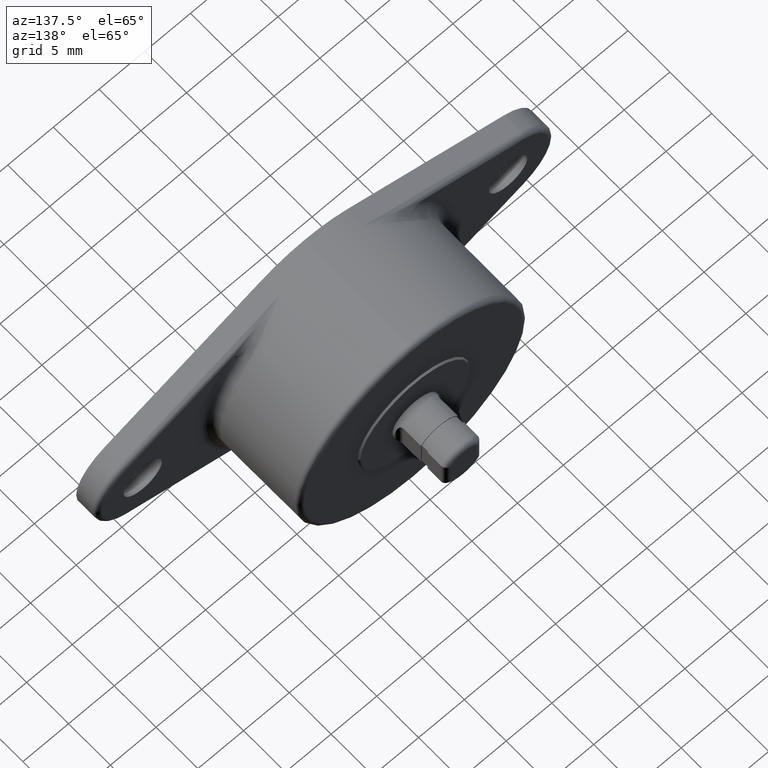
[diagram: clean part render]
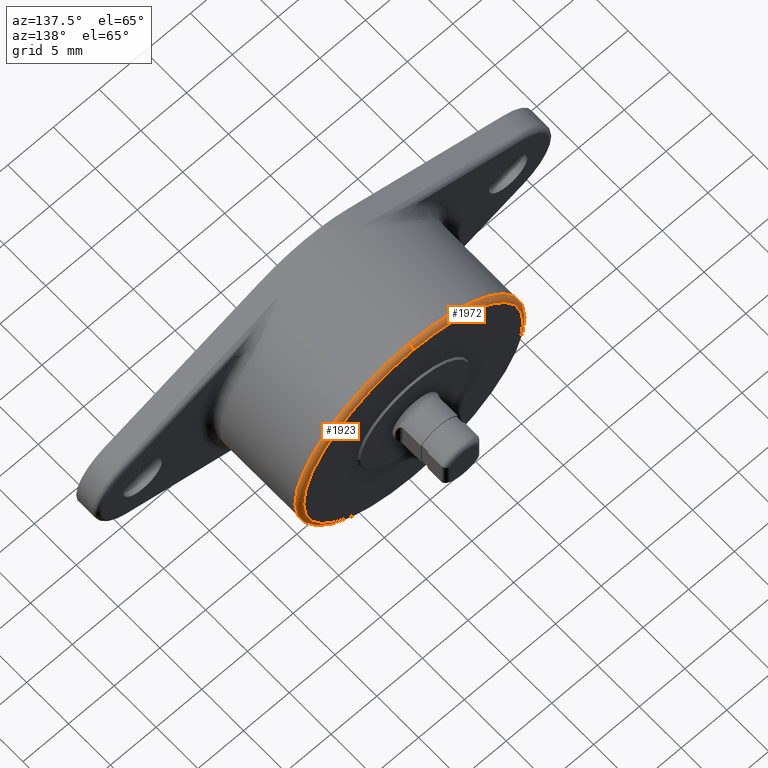
[diagram: same view with one multi-face feature highlighted, each face labeled with its STEP entity id]
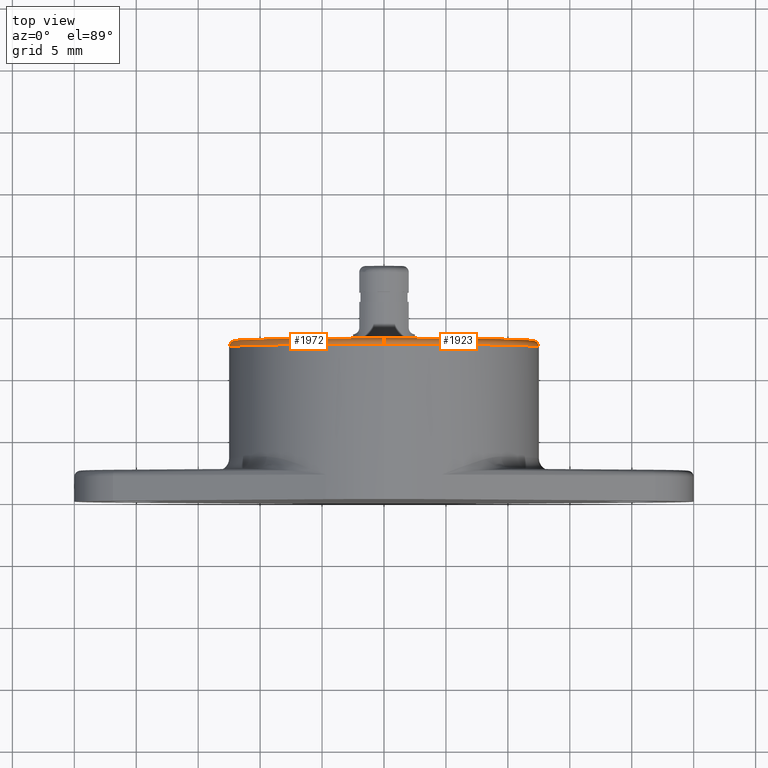
[diagram: same view with one multi-face feature highlighted, each face labeled with its STEP entity id]
A machine part, auxiliary view. The highlighted faces form ONE feature: a constant-radius fillet chain: 2 tangent blend faces with common blend radius 0.5 mm. The faces share edges in the B-rep.
A second angle (top view) of the same feature is appended — it is thin or edge-on in the first view.
Their STEP definitions:
[1] entity #1972 (Torus):
#13 = DIRECTION ( 'NONE',  ( -1.224646799147353500E-016, 0.0000000000000000000, -1.000000000000000000 ) ) ;
#20 = VERTEX_POINT ( 'NONE', #366 ) ;
#60 = CIRCLE ( 'NONE', #1272, 0.5000000008848186600 ) ;
#70 = FACE_OUTER_BOUND ( 'NONE', #155, .T. ) ;
#155 = EDGE_LOOP ( 'NONE', ( #1359, #260, #1569, #486 ) ) ;
#260 = ORIENTED_EDGE ( 'NONE', *, *, #1115, .F. ) ;
#301 = CIRCLE ( 'NONE', #1792, 12.50000000000000000 ) ;
#326 = CARTESIAN_POINT ( 'NONE',  ( 1.500192328901328400E-015, 13.00000000000000200, 11.99999999911518200 ) ) ;
#366 = CARTESIAN_POINT ( 'NONE',  ( 0.0000000000000000000, 13.00000000000000200, -11.99999999911518200 ) ) ;
#368 = EDGE_CURVE ( 'NONE', #1724, #1904, #969, .T. ) ;
#486 = ORIENTED_EDGE ( 'NONE', *, *, #506, .F. ) ;
#506 = EDGE_CURVE ( 'NONE', #1904, #1313, #301, .T. ) ;
#652 = CARTESIAN_POINT ( 'NONE',  ( 0.0000000000000000000, 12.49999999911518200, 0.0000000000000000000 ) ) ;
#679 = CARTESIAN_POINT ( 'NONE',  ( 0.0000000000000000000, 12.49999999911518200, -11.99999999911518200 ) ) ;
#706 = CIRCLE ( 'NONE', #1176, 11.99999999911518200 ) ;
#726 = DIRECTION ( 'NONE',  ( 0.0000000000000000000, 1.000000000000000000, -0.0000000000000000000 ) ) ;
#801 = DIRECTION ( 'NONE',  ( 0.0000000000000000000, 0.0000000000000000000, -1.000000000000000000 ) ) ;
#826 = DIRECTION ( 'NONE',  ( 0.0000000000000000000, 0.0000000000000000000, 1.000000000000000000 ) ) ;
#880 = DIRECTION ( 'NONE',  ( -0.0000000000000000000, -1.000000000000000000, 0.0000000000000000000 ) ) ;
#934 = DIRECTION ( 'NONE',  ( 1.000000000000000000, -0.0000000000000000000, -1.224646799147353200E-016 ) ) ;
#969 = CIRCLE ( 'NONE', #1981, 0.5000000008848186600 ) ;
#1039 = DIRECTION ( 'NONE',  ( 0.0000000000000000000, 0.0000000000000000000, -1.000000000000000000 ) ) ;
#1115 = EDGE_CURVE ( 'NONE', #20, #1724, #706, .T. ) ;
#1176 = AXIS2_PLACEMENT_3D ( 'NONE', #1651, #726, #1802 ) ;
#1269 = CARTESIAN_POINT ( 'NONE',  ( 0.0000000000000000000, 12.49999999911518200, 12.50000000000000000 ) ) ;
#1272 = AXIS2_PLACEMENT_3D ( 'NONE', #679, #1751, #826 ) ;
#1313 = VERTEX_POINT ( 'NONE', #1579 ) ;
#1345 = EDGE_CURVE ( 'NONE', #20, #1313, #60, .T. ) ;
#1359 = ORIENTED_EDGE ( 'NONE', *, *, #368, .F. ) ;
#1438 = AXIS2_PLACEMENT_3D ( 'NONE', #1961, #880, #1039 ) ;
#1569 = ORIENTED_EDGE ( 'NONE', *, *, #1345, .T. ) ;
#1579 = CARTESIAN_POINT ( 'NONE',  ( 1.530808498934191100E-015, 12.49999999911518200, -12.50000000000000000 ) ) ;
#1651 = CARTESIAN_POINT ( 'NONE',  ( 0.0000000000000000000, 13.00000000000000200, 0.0000000000000000000 ) ) ;
#1724 = VERTEX_POINT ( 'NONE', #326 ) ;
#1731 = DIRECTION ( 'NONE',  ( -0.0000000000000000000, -1.000000000000000000, 0.0000000000000000000 ) ) ;
#1751 = DIRECTION ( 'NONE',  ( -1.000000000000000000, 0.0000000000000000000, 0.0000000000000000000 ) ) ;
#1792 = AXIS2_PLACEMENT_3D ( 'NONE', #652, #1731, #801 ) ;
#1802 = DIRECTION ( 'NONE',  ( 0.0000000000000000000, 0.0000000000000000000, -1.000000000000000000 ) ) ;
#1863 = CARTESIAN_POINT ( 'NONE',  ( 1.469576158868464800E-015, 12.49999999911518200, 11.99999999911518200 ) ) ;
#1904 = VERTEX_POINT ( 'NONE', #1269 ) ;
#1958 = TOROIDAL_SURFACE ( 'NONE', #1438, 11.99999999911518200, 0.5000000008848184400 ) ;
#1961 = CARTESIAN_POINT ( 'NONE',  ( 0.0000000000000000000, 12.49999999911518200, 0.0000000000000000000 ) ) ;
#1972 = ADVANCED_FACE ( 'NONE', ( #70 ), #1958, .T. ) ;
#1981 = AXIS2_PLACEMENT_3D ( 'NONE', #1863, #934, #13 ) ;
[2] entity #1923 (Torus):
#13 = DIRECTION ( 'NONE',  ( -1.224646799147353500E-016, 0.0000000000000000000, -1.000000000000000000 ) ) ;
#20 = VERTEX_POINT ( 'NONE', #366 ) ;
#25 = DIRECTION ( 'NONE',  ( 0.0000000000000000000, 0.0000000000000000000, -1.000000000000000000 ) ) ;
#60 = CIRCLE ( 'NONE', #1272, 0.5000000008848186600 ) ;
#111 = CARTESIAN_POINT ( 'NONE',  ( 0.0000000000000000000, 12.49999999911518200, 0.0000000000000000000 ) ) ;
#193 = AXIS2_PLACEMENT_3D ( 'NONE', #1868, #943, #25 ) ;
#263 = DIRECTION ( 'NONE',  ( 0.0000000000000000000, 0.0000000000000000000, -1.000000000000000000 ) ) ;
#326 = CARTESIAN_POINT ( 'NONE',  ( 1.500192328901328400E-015, 13.00000000000000200, 11.99999999911518200 ) ) ;
#338 = ORIENTED_EDGE ( 'NONE', *, *, #368, .T. ) ;
#366 = CARTESIAN_POINT ( 'NONE',  ( 0.0000000000000000000, 13.00000000000000200, -11.99999999911518200 ) ) ;
#368 = EDGE_CURVE ( 'NONE', #1724, #1904, #969, .T. ) ;
#465 = TOROIDAL_SURFACE ( 'NONE', #1114, 11.99999999911518200, 0.5000000008848184400 ) ;
#489 = ORIENTED_EDGE ( 'NONE', *, *, #1448, .F. ) ;
#619 = CIRCLE ( 'NONE', #193, 12.50000000000000000 ) ;
#679 = CARTESIAN_POINT ( 'NONE',  ( 0.0000000000000000000, 12.49999999911518200, -11.99999999911518200 ) ) ;
#728 = CIRCLE ( 'NONE', #1787, 11.99999999911518200 ) ;
#826 = DIRECTION ( 'NONE',  ( 0.0000000000000000000, 0.0000000000000000000, 1.000000000000000000 ) ) ;
#876 = DIRECTION ( 'NONE',  ( 0.0000000000000000000, 1.000000000000000000, -0.0000000000000000000 ) ) ;
#879 = FACE_OUTER_BOUND ( 'NONE', #925, .T. ) ;
#911 = ORIENTED_EDGE ( 'NONE', *, *, #1345, .F. ) ;
#925 = EDGE_LOOP ( 'NONE', ( #489, #338, #1512, #911 ) ) ;
#934 = DIRECTION ( 'NONE',  ( 1.000000000000000000, -0.0000000000000000000, -1.224646799147353200E-016 ) ) ;
#943 = DIRECTION ( 'NONE',  ( -0.0000000000000000000, -1.000000000000000000, 0.0000000000000000000 ) ) ;
#969 = CIRCLE ( 'NONE', #1981, 0.5000000008848186600 ) ;
#1114 = AXIS2_PLACEMENT_3D ( 'NONE', #111, #1180, #263 ) ;
#1180 = DIRECTION ( 'NONE',  ( -0.0000000000000000000, -1.000000000000000000, 0.0000000000000000000 ) ) ;
#1269 = CARTESIAN_POINT ( 'NONE',  ( 0.0000000000000000000, 12.49999999911518200, 12.50000000000000000 ) ) ;
#1272 = AXIS2_PLACEMENT_3D ( 'NONE', #679, #1751, #826 ) ;
#1313 = VERTEX_POINT ( 'NONE', #1579 ) ;
#1345 = EDGE_CURVE ( 'NONE', #20, #1313, #60, .T. ) ;
#1448 = EDGE_CURVE ( 'NONE', #1724, #20, #728, .T. ) ;
#1512 = ORIENTED_EDGE ( 'NONE', *, *, #1814, .F. ) ;
#1579 = CARTESIAN_POINT ( 'NONE',  ( 1.530808498934191100E-015, 12.49999999911518200, -12.50000000000000000 ) ) ;
#1724 = VERTEX_POINT ( 'NONE', #326 ) ;
#1751 = DIRECTION ( 'NONE',  ( -1.000000000000000000, 0.0000000000000000000, 0.0000000000000000000 ) ) ;
#1787 = AXIS2_PLACEMENT_3D ( 'NONE', #1800, #876, #1946 ) ;
#1800 = CARTESIAN_POINT ( 'NONE',  ( 0.0000000000000000000, 13.00000000000000200, 0.0000000000000000000 ) ) ;
#1814 = EDGE_CURVE ( 'NONE', #1313, #1904, #619, .T. ) ;
#1863 = CARTESIAN_POINT ( 'NONE',  ( 1.469576158868464800E-015, 12.49999999911518200, 11.99999999911518200 ) ) ;
#1868 = CARTESIAN_POINT ( 'NONE',  ( 0.0000000000000000000, 12.49999999911518200, 0.0000000000000000000 ) ) ;
#1904 = VERTEX_POINT ( 'NONE', #1269 ) ;
#1923 = ADVANCED_FACE ( 'NONE', ( #879 ), #465, .T. ) ;
#1946 = DIRECTION ( 'NONE',  ( 0.0000000000000000000, 0.0000000000000000000, -1.000000000000000000 ) ) ;
#1981 = AXIS2_PLACEMENT_3D ( 'NONE', #1863, #934, #13 ) ;